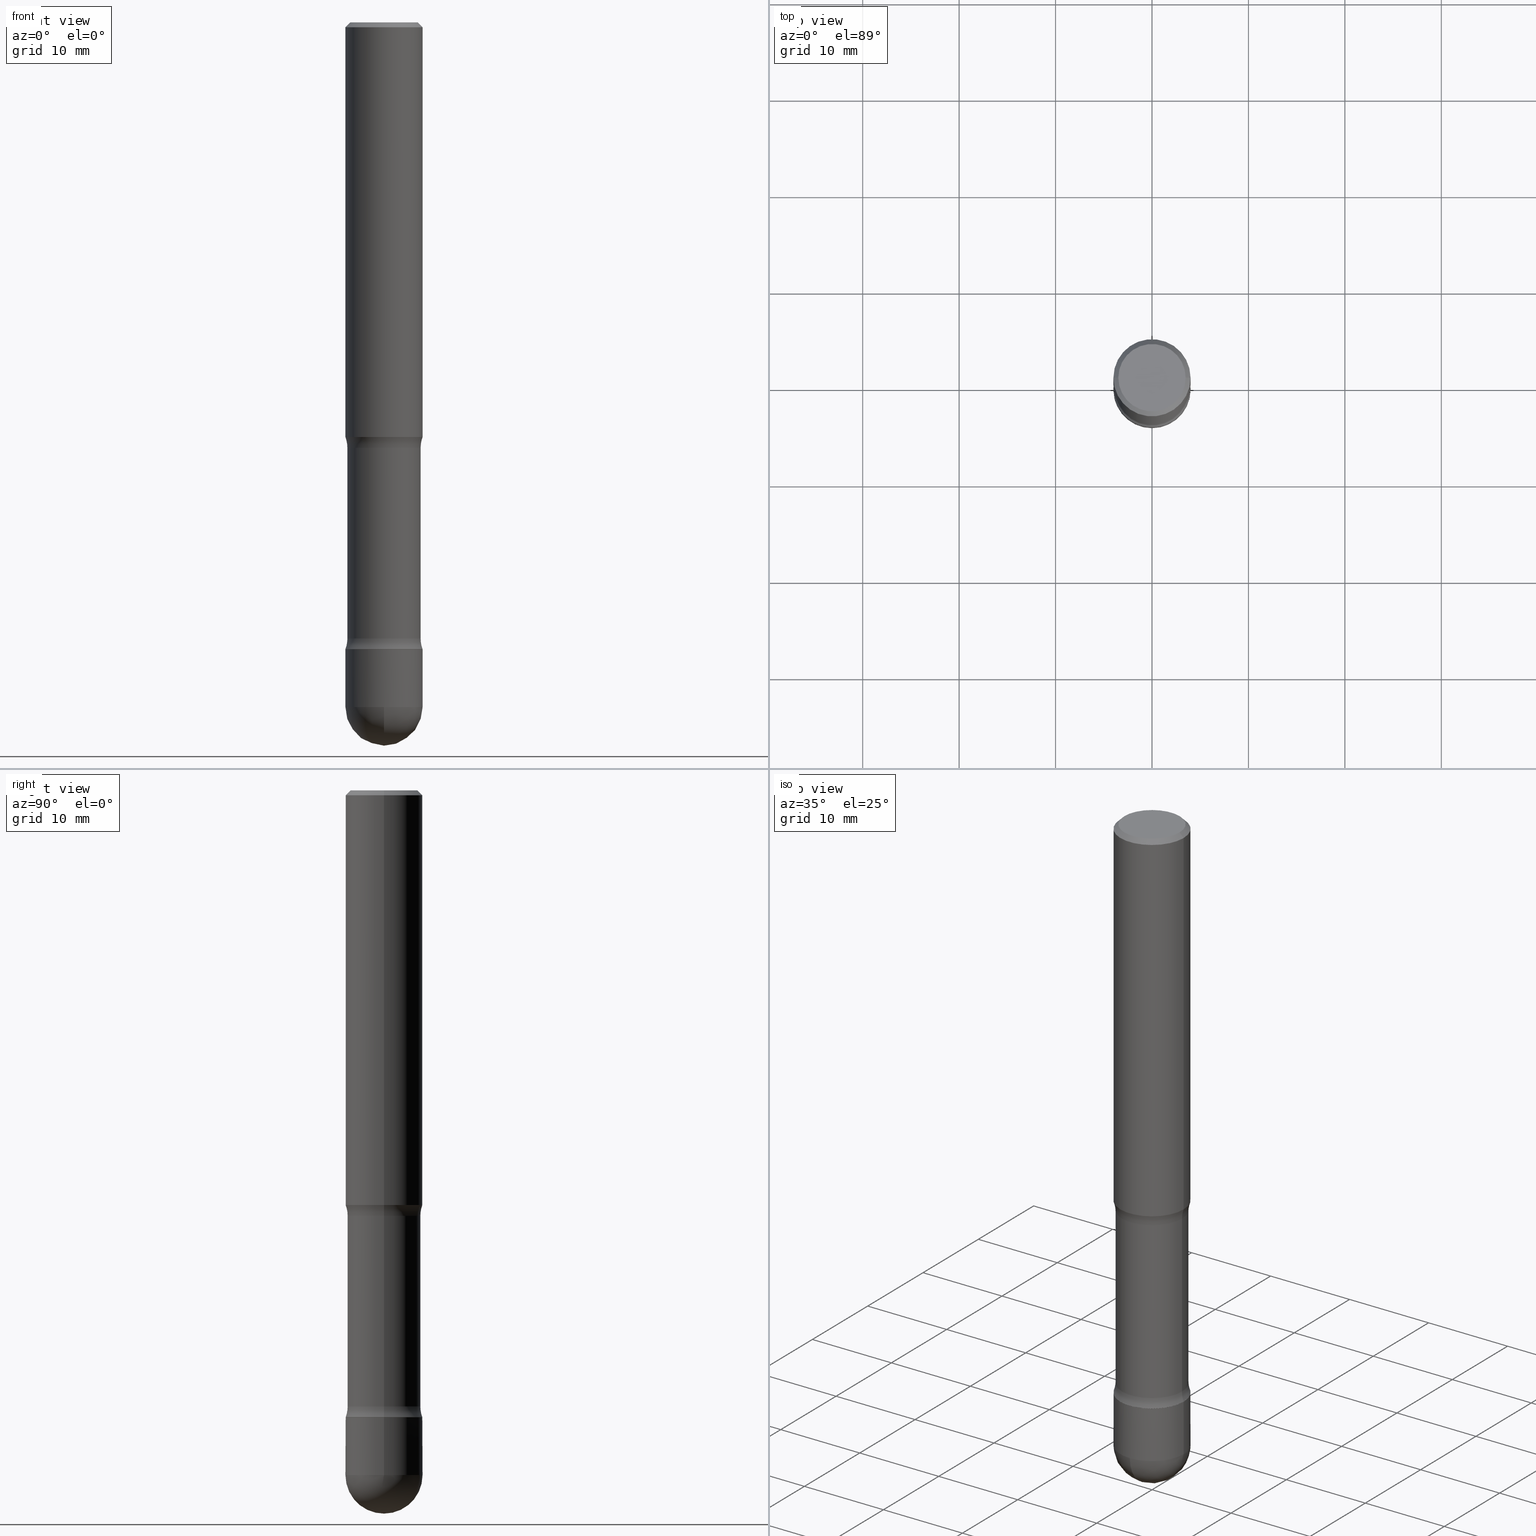
[diagram: canonical four-view strip — front | top / right | iso, engineering-drawing reading convention]
A machine part, canonical four-view strip (front | top / right | iso — engineering-drawing reading convention). The complete STEP part file that produces these views, byte-faithful:
ISO-10303-21;
HEADER;
FILE_DESCRIPTION (( 'STEP AP203' ),
    '1' );
FILE_NAME ('45207.STEP',
    '2024-02-29T19:26:57',
    ( '' ),
    ( '' ),
    'SwSTEP 2.0',
    'SolidWorks 2023',
    '' );
FILE_SCHEMA (( 'CONFIG_CONTROL_DESIGN' ));
ENDSEC;

DATA;
#1 = DIRECTION ( 'NONE',  ( 6.860497997771531562E-15, 1.000000000000000000, -3.491481338843145583E-15 ) ) ;
#2 = AXIS2_PLACEMENT_3D ( 'NONE', #468, #423, #353 ) ;
#3 = AXIS2_PLACEMENT_3D ( 'NONE', #98, #523, #449 ) ;
#4 = ADVANCED_FACE ( 'NONE', ( #20 ), #461, .T. ) ;
#5 = VERTEX_POINT ( 'NONE', #70 ) ;
#6 = LINE ( 'NONE', #260, #443 ) ;
#7 = CARTESIAN_POINT ( 'NONE',  ( -0.2744999999999865326, -6.864601460299616564E-15, -2.515100000000002556 ) ) ;
#8 = CARTESIAN_POINT ( 'NONE',  ( 0.1574999999999995015, -1.003486651596907730E-14, -2.559099999999999486 ) ) ;
#9 = DIRECTION ( 'NONE',  ( 2.445468806185136597E-29, -3.491481338843145583E-15, -1.000000000000000000 ) ) ;
#10 = CARTESIAN_POINT ( 'NONE',  ( 6.258199221908381703E-29, -8.935049894233492186E-15, -2.559099999999999486 ) ) ;
#11 = DIRECTION ( 'NONE',  ( 1.000000000000000000, -7.105427357601001070E-15, 4.926315508542082329E-29 ) ) ;
#12 = CARTESIAN_POINT ( 'NONE',  ( 0.2744999999999865326, -1.066463141571259585E-14, -2.515100000000002556 ) ) ;
#13 = AXIS2_PLACEMENT_3D ( 'NONE', #309, #273, #400 ) ;
#14 = ORIENTED_EDGE ( 'NONE', *, *, #39, .T. ) ;
#15 = DIRECTION ( 'NONE',  ( 2.445468806185136597E-29, -3.491481338843145583E-15, -1.000000000000000000 ) ) ;
#16 = DIRECTION ( 'NONE',  ( -2.445468806185136597E-29, 3.491481338843145583E-15, 1.000000000000000000 ) ) ;
#17 = LINE ( 'NONE', #409, #326 ) ;
#18 = VERTEX_POINT ( 'NONE', #31 ) ;
#19 = DIRECTION ( 'NONE',  ( 2.438088387897960049E-29, -3.491481338843145188E-15, -1.000000000000000000 ) ) ;
#20 = FACE_OUTER_BOUND ( 'NONE', #94, .T. ) ;
#21 = DATE_AND_TIME ( #335, #93 ) ;
#22 = AXIS2_PLACEMENT_3D ( 'NONE', #12, #359, #87 ) ;
#23 = CIRCLE ( 'NONE', #92, 0.1569999999999995011 ) ;
#24 = EDGE_CURVE ( 'NONE', #425, #248, #119, .T. ) ;
#25 = DATE_AND_TIME ( #242, #199 ) ;
#26 = PERSON_AND_ORGANIZATION_ROLE ( 'classification_officer' ) ;
#27 = TOROIDAL_SURFACE ( 'NONE', #363, 0.2744999999999865326, 0.1249999999999865385 ) ;
#28 = AXIS2_PLACEMENT_3D ( 'NONE', #7, #56, #236 ) ;
#29 = ORIENTED_EDGE ( 'NONE', *, *, #140, .T. ) ;
#30 = EDGE_CURVE ( 'NONE', #265, #278, #432, .T. ) ;
#31 = CARTESIAN_POINT ( 'NONE',  ( 0.1575000000000000011, -4.070982201368173666E-15, -1.693000000000002503 ) ) ;
#32 = DIRECTION ( 'NONE',  ( -6.982962677686266711E-15, -1.000000000000000000, 3.491481338843145583E-15 ) ) ;
#33 = DIRECTION ( 'NONE',  ( -1.000000000000000000, 6.982962677686265922E-15, -4.876176775795935793E-29 ) ) ;
#34 = CONICAL_SURFACE ( 'NONE', #189, 0.1569999999999995011, 0.7853981633976829801 ) ;
#35 = CARTESIAN_POINT ( 'NONE',  ( -0.1495000000000001328, -5.020750165256446212E-15, -1.736999999999999877 ) ) ;
#36 = CC_DESIGN_PERSON_AND_ORGANIZATION_ASSIGNMENT ( #99, #85, ( #75 ) ) ;
#37 = DIRECTION ( 'NONE',  ( -1.000000000000000000, 6.982962677686269077E-15, 0.000000000000000000 ) ) ;
#38 = CARTESIAN_POINT ( 'NONE',  ( 0.1574999999999995015, -1.099816621735583536E-15, 7.679978421878574211E-30 ) ) ;
#39 = EDGE_CURVE ( 'NONE', #237, #427, #554, .T. ) ;
#40 = DIRECTION ( 'NONE',  ( -1.000000000000000000, 6.982962677686266711E-15, 0.000000000000000000 ) ) ;
#41 = LINE ( 'NONE', #47, #533 ) ;
#42 = AXIS2_PLACEMENT_3D ( 'NONE', #445, #138, #272 ) ;
#43 = DIRECTION ( 'NONE',  ( -1.000000000000000000, 6.982962677686265922E-15, -4.883557194083112340E-29 ) ) ;
#44 = APPLICATION_PROTOCOL_DEFINITION ( 'international standard', 'config_control_design', 1994, #60 ) ;
#45 = ORIENTED_EDGE ( 'NONE', *, *, #24, .F. ) ;
#46 = CARTESIAN_POINT ( 'NONE',  ( 4.140178688871442186E-29, -5.911077906661454053E-15, -1.693000000000002503 ) ) ;
#47 = CARTESIAN_POINT ( 'NONE',  ( -0.1574999999999997513, 1.029986994958723196E-15, -0.01999999999999978531 ) ) ;
#48 = DIRECTION ( 'NONE',  ( 1.000000000000000000, -6.982962677686265922E-15, 4.876176775795935793E-29 ) ) ;
#49 = CC_DESIGN_PERSON_AND_ORGANIZATION_ASSIGNMENT ( #416, #26, ( #421 ) ) ;
#50 = ORIENTED_EDGE ( 'NONE', *, *, #463, .T. ) ;
#51 = FACE_OUTER_BOUND ( 'NONE', #57, .T. ) ;
#52 = CARTESIAN_POINT ( 'NONE',  ( 6.150598594436243200E-29, -8.781424715324403028E-15, -2.515100000000002556 ) ) ;
#53 = SPHERICAL_SURFACE ( 'NONE', #380, 0.1574999999999998623 ) ;
#54 = AXIS2_PLACEMENT_3D ( 'NONE', #566, #164, #487 ) ;
#55 = ORIENTED_EDGE ( 'NONE', *, *, #394, .T. ) ;
#56 = DIRECTION ( 'NONE',  ( -6.982962677686266711E-15, -1.000000000000000000, 3.491481338843145583E-15 ) ) ;
#57 = EDGE_LOOP ( 'NONE', ( #444, #560 ) ) ;
#58 = DIRECTION ( 'NONE',  ( 1.000000000000000000, -6.982962677686266711E-15, 4.876176775795935793E-29 ) ) ;
#59 = DATE_AND_TIME ( #112, #147 ) ;
#60 = APPLICATION_CONTEXT ( 'configuration controlled 3d designs of mechanical parts and assemblies' ) ;
#61 = AXIS2_PLACEMENT_3D ( 'NONE', #175, #9, #37 ) ;
#62 = DATE_TIME_ROLE ( 'creation_date' ) ;
#63 = AXIS2_PLACEMENT_3D ( 'NONE', #357, #15, #229 ) ;
#64 = ADVANCED_FACE ( 'NONE', ( #426 ), #546, .T. ) ;
#65 = APPROVAL_ROLE ( '' ) ;
#66 = CARTESIAN_POINT ( 'NONE',  ( 4.890937612370220610E-31, -6.982962677686216421E-17, -0.01999999999999978531 ) ) ;
#67 = ORIENTED_EDGE ( 'NONE', *, *, #254, .F. ) ;
#68 = EDGE_CURVE ( 'NONE', #88, #462, #197, .T. ) ;
#69 = TOROIDAL_SURFACE ( 'NONE', #63, 0.2744999999999884754, 0.1249999999999883149 ) ;
#70 = CARTESIAN_POINT ( 'NONE',  ( 0.1495000000000001328, -7.040976938773929541E-15, -1.736999999999999877 ) ) ;
#71 = PRODUCT_DEFINITION_FORMATION_WITH_SPECIFIED_SOURCE ( 'ANY', '', #75, .NOT_KNOWN. ) ;
#72 = DIRECTION ( 'NONE',  ( 2.445468806185136597E-29, -3.491481338843145583E-15, -1.000000000000000000 ) ) ;
#73 = ADVANCED_FACE ( 'NONE', ( #141 ), #34, .T. ) ;
#74 = LINE ( 'NONE', #78, #388 ) ;
#75 = PRODUCT ( '45207', '45207', '', ( #446 ) ) ;
#76 = ORIENTED_EDGE ( 'NONE', *, *, #394, .F. ) ;
#77 = CARTESIAN_POINT ( 'NONE',  ( 4.247779316343581811E-29, -6.064703085570544000E-15, -1.736999999999999877 ) ) ;
#78 = CARTESIAN_POINT ( 'NONE',  ( -0.1569999999999995011, -7.819497799090139426E-15, -2.559099999999999486 ) ) ;
#79 = CIRCLE ( 'NONE', #291, 0.1574999999999998623 ) ;
#80 = VERTEX_POINT ( 'NONE', #550 ) ;
#81 = DIRECTION ( 'NONE',  ( 2.445468806185136597E-29, -3.491481338843145583E-15, -1.000000000000000000 ) ) ;
#82 = CARTESIAN_POINT ( 'NONE',  ( 0.1574999999999995015, -1.044721046208645143E-14, -2.795299999999999674 ) ) ;
#83 = ADVANCED_FACE ( 'NONE', ( #245 ), #511, .F. ) ;
#84 = CARTESIAN_POINT ( 'NONE',  ( 1.119104808822223473E-15, 0.1574999999999899258, -2.795300000000000118 ) ) ;
#85 = PERSON_AND_ORGANIZATION_ROLE ( 'design_owner' ) ;
#86 = FACE_OUTER_BOUND ( 'NONE', #366, .T. ) ;
#87 = DIRECTION ( 'NONE',  ( -1.000000000000000000, 6.860497997771539451E-15, 0.000000000000000000 ) ) ;
#88 = VERTEX_POINT ( 'NONE', #331 ) ;
#89 = CARTESIAN_POINT ( 'NONE',  ( 6.258199221908381703E-29, -8.935049894233492186E-15, -2.559099999999999486 ) ) ;
#90 =( LENGTH_UNIT ( ) NAMED_UNIT ( * ) SI_UNIT ( $, .METRE. ) );
#91 = ADVANCED_FACE ( 'NONE', ( #294 ), #262, .T. ) ;
#92 = AXIS2_PLACEMENT_3D ( 'NONE', #389, #343, #342 ) ;
#93 = LOCAL_TIME ( 14, 26, 57.00000000000000000, #450 ) ;
#94 = EDGE_LOOP ( 'NONE', ( #289, #448, #186, #480 ) ) ;
#95 = CYLINDRICAL_SURFACE ( 'NONE', #54, 0.1494999999999999107 ) ;
#96 = CYLINDRICAL_SURFACE ( 'NONE', #206, 0.1494999999999999107 ) ;
#97 = VERTEX_POINT ( 'NONE', #475 ) ;
#98 = CARTESIAN_POINT ( 'NONE',  ( 0.000000000000000000, 0.000000000000000000, 0.000000000000000000 ) ) ;
#99 = PERSON_AND_ORGANIZATION ( #211, #233 ) ;
#100 = CARTESIAN_POINT ( 'NONE',  ( 6.258199221908381703E-29, -8.935049894233492186E-15, -2.559099999999999486 ) ) ;
#101 = ORIENTED_EDGE ( 'NONE', *, *, #264, .F. ) ;
#102 = DIRECTION ( 'NONE',  ( -1.000000000000000000, 6.982962677686265922E-15, -4.876176775795935793E-29 ) ) ;
#103 = CIRCLE ( 'NONE', #313, 0.1573638227056415317 ) ;
#104 = VERTEX_POINT ( 'NONE', #205 ) ;
#105 = CIRCLE ( 'NONE', #182, 0.1495000000000001328 ) ;
#106 = ORIENTED_EDGE ( 'NONE', *, *, #250, .F. ) ;
#107 = EDGE_CURVE ( 'NONE', #5, #18, #561, .T. ) ;
#108 = ORIENTED_EDGE ( 'NONE', *, *, #110, .F. ) ;
#109 = VECTOR ( 'NONE', #125, 39.37007874015748143 ) ;
#110 = EDGE_CURVE ( 'NONE', #395, #104, #74, .T. ) ;
#111 = CIRCLE ( 'NONE', #334, 0.1574999999999995015 ) ;
#112 = CALENDAR_DATE ( 2024, 29, 2 ) ;
#113 = DIRECTION ( 'NONE',  ( -2.445468806185136597E-29, 3.491481338843145583E-15, 1.000000000000000000 ) ) ;
#114 = EDGE_CURVE ( 'NONE', #427, #316, #431, .T. ) ;
#115 = ORIENTED_EDGE ( 'NONE', *, *, #551, .T. ) ;
#116 = VERTEX_POINT ( 'NONE', #258 ) ;
#117 = CLOSED_SHELL ( 'NONE', ( #91, #286, #406, #64, #337 ) ) ;
#118 = ORIENTED_EDGE ( 'NONE', *, *, #494, .T. ) ;
#119 = CIRCLE ( 'NONE', #167, 0.1494999999999996887 ) ;
#120 = AXIS2_PLACEMENT_3D ( 'NONE', #100, #19, #102 ) ;
#121 = DIRECTION ( 'NONE',  ( -1.000000000000000000, 6.982962677686266711E-15, 0.000000000000000000 ) ) ;
#122 = ORIENTED_EDGE ( 'NONE', *, *, #386, .T. ) ;
#123 = ADVANCED_FACE ( 'NONE', ( #349 ), #27, .F. ) ;
#124 = DIRECTION ( 'NONE',  ( 2.438088387897960049E-29, -3.491481338843145188E-15, -1.000000000000000000 ) ) ;
#125 = DIRECTION ( 'NONE',  ( 2.445468806185136877E-29, -3.491481338843145188E-15, -1.000000000000000000 ) ) ;
#126 = EDGE_LOOP ( 'NONE', ( #402, #456, #459, #139 ) ) ;
#127 = CARTESIAN_POINT ( 'NONE',  ( 6.822350084874735636E-29, -9.779025973554814517E-15, -2.795299999999999674 ) ) ;
#128 = FACE_OUTER_BOUND ( 'NONE', #336, .T. ) ;
#129 = CARTESIAN_POINT ( 'NONE',  ( -0.1374999999999997335, 9.601573681818597005E-16, -6.704743066719399103E-30 ) ) ;
#130 = ORIENTED_EDGE ( 'NONE', *, *, #39, .F. ) ;
#131 = CARTESIAN_POINT ( 'NONE',  ( 6.822350084874735636E-29, -9.779025973554814517E-15, -2.795299999999999674 ) ) ;
#132 =( NAMED_UNIT ( * ) SI_UNIT ( $, .STERADIAN. ) SOLID_ANGLE_UNIT ( ) );
#133 = CC_DESIGN_PERSON_AND_ORGANIZATION_ASSIGNMENT ( #531, #489, ( #516 ) ) ;
#134 = VERTEX_POINT ( 'NONE', #129 ) ;
#135 = DIRECTION ( 'NONE',  ( 1.000000000000000000, -6.982962677686271444E-15, 0.000000000000000000 ) ) ;
#136 = VECTOR ( 'NONE', #224, 39.37007874015748143 ) ;
#137 = ORIENTED_EDGE ( 'NONE', *, *, #114, .T. ) ;
#138 = DIRECTION ( 'NONE',  ( -2.445468806185136597E-29, 3.491481338843145583E-15, 1.000000000000000000 ) ) ;
#139 = ORIENTED_EDGE ( 'NONE', *, *, #538, .F. ) ;
#140 = EDGE_CURVE ( 'NONE', #301, #271, #17, .T. ) ;
#141 = FACE_OUTER_BOUND ( 'NONE', #162, .T. ) ;
#142 = ORIENTED_EDGE ( 'NONE', *, *, #194, .T. ) ;
#143 = EDGE_CURVE ( 'NONE', #97, #425, #297, .T. ) ;
#144 = CIRCLE ( 'NONE', #333, 0.1574999999999997513 ) ;
#145 = CARTESIAN_POINT ( 'NONE',  ( 4.890937612370220610E-31, -6.982962677686216421E-17, -0.01999999999999978531 ) ) ;
#146 = AXIS2_PLACEMENT_3D ( 'NONE', #539, #483, #371 ) ;
#147 = LOCAL_TIME ( 14, 26, 57.00000000000000000, #506 ) ;
#148 = PERSON_AND_ORGANIZATION_ROLE ( 'creator' ) ;
#149 = EDGE_CURVE ( 'NONE', #5, #425, #451, .T. ) ;
#150 = PERSON_AND_ORGANIZATION ( #211, #233 ) ;
#151 = CIRCLE ( 'NONE', #379, 0.1574999999999998623 ) ;
#152 = AXIS2_PLACEMENT_3D ( 'NONE', #478, #210, #249 ) ;
#153 = VERTEX_POINT ( 'NONE', #84 ) ;
#154 = UNCERTAINTY_MEASURE_WITH_UNIT (LENGTH_MEASURE( 1.000000000000000082E-05 ), #318, 'distance_accuracy_value', 'NONE');
#155 = DIRECTION ( 'NONE',  ( 2.445468806185136597E-29, -3.491481338843145583E-15, -1.000000000000000000 ) ) ;
#156 = EDGE_CURVE ( 'NONE', #462, #88, #144, .T. ) ;
#157 = DIRECTION ( 'NONE',  ( 2.445468806185136597E-29, -3.491481338843145583E-15, -1.000000000000000000 ) ) ;
#158 = CIRCLE ( 'NONE', #28, 0.1249999999999865385 ) ;
#159 = CARTESIAN_POINT ( 'NONE',  ( 0.1574999999999997513, -1.150358061425876711E-15, -0.01999999999999978531 ) ) ;
#160 = EDGE_LOOP ( 'NONE', ( #202, #485, #438, #184 ) ) ;
#161 = CARTESIAN_POINT ( 'NONE',  ( 0.1569999999999995011, -1.003137503463023272E-14, -2.559099999999999486 ) ) ;
#162 = EDGE_LOOP ( 'NONE', ( #108, #417, #338, #55 ) ) ;
#163 = EDGE_LOOP ( 'NONE', ( #106, #543, #509, #540 ) ) ;
#164 = DIRECTION ( 'NONE',  ( 2.445468806185136597E-29, -3.491481338843145583E-15, -1.000000000000000000 ) ) ;
#165 = ORIENTED_EDGE ( 'NONE', *, *, #222, .T. ) ;
#166 = CARTESIAN_POINT ( 'NONE',  ( -0.1574999999999995015, -8.228289031528713448E-15, -2.795299999999999674 ) ) ;
#167 = AXIS2_PLACEMENT_3D ( 'NONE', #383, #191, #429 ) ;
#168 = DIRECTION ( 'NONE',  ( -0.7071067811867134401, 7.493145998870953694E-15, 0.7071067811863815944 ) ) ;
#169 = AXIS2_PLACEMENT_3D ( 'NONE', #52, #261, #362 ) ;
#170 = CARTESIAN_POINT ( 'NONE',  ( 0.1574999999999998901, -1.001557832888250797E-14, -2.559099999999999486 ) ) ;
#171 = DIRECTION ( 'NONE',  ( 2.445468806185136597E-29, -3.491481338843145583E-15, -1.000000000000000000 ) ) ;
#172 = DIRECTION ( 'NONE',  ( -2.445468806185136597E-29, 3.491481338843145583E-15, 1.000000000000000000 ) ) ;
#173 = APPROVAL ( #195, 'UNSPECIFIED' ) ;
#174 = ORIENTED_EDGE ( 'NONE', *, *, #149, .T. ) ;
#175 = CARTESIAN_POINT ( 'NONE',  ( 6.258199221908381703E-29, -8.935049894233492186E-15, -2.559099999999999486 ) ) ;
#176 = DIRECTION ( 'NONE',  ( 2.445468806185136597E-29, -3.491481338843145583E-15, -1.000000000000000000 ) ) ;
#177 = EDGE_CURVE ( 'NONE', #265, #5, #216, .T. ) ;
#178 = ORIENTED_EDGE ( 'NONE', *, *, #24, .T. ) ;
#179 = EDGE_LOOP ( 'NONE', ( #501, #174, #259, #324 ) ) ;
#180 = CARTESIAN_POINT ( 'NONE',  ( -1.099816621735516286E-15, -0.1575000000000094658, -2.795299999999998786 ) ) ;
#181 = CARTESIAN_POINT ( 'NONE',  ( 6.835818953929311707E-29, -9.759737786468243605E-15, -2.795299999999999674 ) ) ;
#182 = AXIS2_PLACEMENT_3D ( 'NONE', #77, #171, #527 ) ;
#183 = EDGE_LOOP ( 'NONE', ( #319, #370, #281, #130 ) ) ;
#184 = ORIENTED_EDGE ( 'NONE', *, *, #368, .T. ) ;
#185 = APPROVAL_STATUS ( 'not_yet_approved' ) ;
#186 = ORIENTED_EDGE ( 'NONE', *, *, #368, .F. ) ;
#187 = DATE_AND_TIME ( #244, #434 ) ;
#188 = DIRECTION ( 'NONE',  ( 2.445468806185136597E-29, -3.491481338843145583E-15, -1.000000000000000000 ) ) ;
#189 = AXIS2_PLACEMENT_3D ( 'NONE', #323, #238, #375 ) ;
#190 = CIRCLE ( 'NONE', #146, 0.1573638227056415317 ) ;
#191 = DIRECTION ( 'NONE',  ( 2.445468806185136597E-29, -3.491481338843145583E-15, -1.000000000000000000 ) ) ;
#192 = CIRCLE ( 'NONE', #522, 0.1575000000000000011 ) ;
#193 = EDGE_CURVE ( 'NONE', #104, #97, #103, .T. ) ;
#194 = EDGE_CURVE ( 'NONE', #395, #116, #547, .T. ) ;
#195 = APPROVAL_STATUS ( 'not_yet_approved' ) ;
#196 = ADVANCED_FACE ( 'NONE', ( #398 ), #95, .T. ) ;
#197 = CIRCLE ( 'NONE', #240, 0.1574999999999997513 ) ;
#198 = AXIS2_PLACEMENT_3D ( 'NONE', #46, #81, #403 ) ;
#199 = LOCAL_TIME ( 14, 26, 57.00000000000000000, #378 ) ;
#200 = DIRECTION ( 'NONE',  ( -1.000000000000000000, 6.982962677686266711E-15, 0.000000000000000000 ) ) ;
#201 = EDGE_CURVE ( 'NONE', #356, #237, #151, .T. ) ;
#202 = ORIENTED_EDGE ( 'NONE', *, *, #107, .F. ) ;
#203 = EDGE_LOOP ( 'NONE', ( #292, #29, #101, #385, #115 ) ) ;
#204 = LINE ( 'NONE', #161, #477 ) ;
#205 = CARTESIAN_POINT ( 'NONE',  ( -0.1573638227056415040, -7.834913913274563422E-15, -2.558736177294357539 ) ) ;
#206 = AXIS2_PLACEMENT_3D ( 'NONE', #10, #176, #352 ) ;
#207 = ADVANCED_FACE ( 'NONE', ( #308 ), #424, .T. ) ;
#208 = DESIGN_CONTEXT ( 'detailed design', #60, 'design' ) ;
#209 = CARTESIAN_POINT ( 'NONE',  ( 4.247779316343581811E-29, -6.064703085570544000E-15, -1.736999999999999877 ) ) ;
#210 = DIRECTION ( 'NONE',  ( 2.445468806185136597E-29, -3.491481338843145583E-15, -1.000000000000000000 ) ) ;
#211 = PERSON ( 'UNSPECIFIED', 'UNSPECIFIED', 'UNSPECIFIED', ('UNSPECIFIED'), ('UNSPECIFIED'), ('UNSPECIFIED') ) ;
#212 = DIRECTION ( 'NONE',  ( -1.000000000000000000, 6.982962677686266711E-15, 0.000000000000000000 ) ) ;
#213 = EDGE_CURVE ( 'NONE', #134, #80, #374, .T. ) ;
#214 = DIRECTION ( 'NONE',  ( -6.982962677686264344E-15, -1.000000000000000000, 0.000000000000000000 ) ) ;
#215 = DATE_AND_TIME ( #312, #514 ) ;
#216 = CIRCLE ( 'NONE', #345, 0.1495000000000001328 ) ;
#217 = CIRCLE ( 'NONE', #399, 0.1574999999999995015 ) ;
#218 = ORIENTED_EDGE ( 'NONE', *, *, #107, .T. ) ;
#219 = ORIENTED_EDGE ( 'NONE', *, *, #538, .T. ) ;
#220 = DIRECTION ( 'NONE',  ( 1.000000000000000000, -6.982962677686271444E-15, 0.000000000000000000 ) ) ;
#221 = PERSON_AND_ORGANIZATION ( #211, #233 ) ;
#222 = EDGE_CURVE ( 'NONE', #18, #278, #420, .T. ) ;
#223 = DIRECTION ( 'NONE',  ( 2.445468806185136877E-29, -3.491481338843145188E-15, -1.000000000000000000 ) ) ;
#224 = DIRECTION ( 'NONE',  ( 2.445468806185136877E-29, -3.491481338843145188E-15, -1.000000000000000000 ) ) ;
#225 = DIRECTION ( 'NONE',  ( 2.445468806185136597E-29, -3.491481338843145583E-15, -1.000000000000000000 ) ) ;
#226 = DIRECTION ( 'NONE',  ( 2.445468806185136597E-29, -3.491481338843145583E-15, -1.000000000000000000 ) ) ;
#227 = CC_DESIGN_DATE_AND_TIME_ASSIGNMENT ( #25, #502, ( #421 ) ) ;
#228 = ORIENTED_EDGE ( 'NONE', *, *, #156, .F. ) ;
#229 = DIRECTION ( 'NONE',  ( -1.000000000000000000, 6.982962677686265922E-15, -4.883557194083112901E-29 ) ) ;
#230 = DIRECTION ( 'NONE',  ( -2.445468806185136597E-29, 3.491481338843145583E-15, 1.000000000000000000 ) ) ;
#231 = CARTESIAN_POINT ( 'NONE',  ( 6.822350084874735636E-29, -9.779025973554814517E-15, -2.795299999999999674 ) ) ;
#232 = CIRCLE ( 'NONE', #486, 0.1374999999999997335 ) ;
#233 = ORGANIZATION ( 'UNSPECIFIED', 'UNSPECIFIED', '' ) ;
#234 = EDGE_LOOP ( 'NONE', ( #76, #415, #178, #497 ) ) ;
#235 = PERSON_AND_ORGANIZATION_ROLE ( 'design_supplier' ) ;
#236 = DIRECTION ( 'NONE',  ( 1.000000000000000000, -6.982962677686269077E-15, 0.000000000000000000 ) ) ;
#237 = VERTEX_POINT ( 'NONE', #180 ) ;
#238 = DIRECTION ( 'NONE',  ( -2.445468806185136597E-29, 3.491481338843145583E-15, 1.000000000000000000 ) ) ;
#239 = CC_DESIGN_PERSON_AND_ORGANIZATION_ASSIGNMENT ( #503, #235, ( #71 ) ) ;
#240 = AXIS2_PLACEMENT_3D ( 'NONE', #145, #157, #121 ) ;
#241 = AXIS2_PLACEMENT_3D ( 'NONE', #517, #124, #476 ) ;
#242 = CALENDAR_DATE ( 2024, 29, 2 ) ;
#243 = DIRECTION ( 'NONE',  ( -6.982962677686265133E-15, -1.000000000000000000, 3.469013325287956449E-15 ) ) ;
#244 = CALENDAR_DATE ( 2024, 29, 2 ) ;
#245 = FACE_OUTER_BOUND ( 'NONE', #474, .T. ) ;
#246 = AXIS2_PLACEMENT_3D ( 'NONE', #181, #16, #303 ) ;
#247 = CARTESIAN_POINT ( 'NONE',  ( 6.835818953929311707E-29, -9.759737786468243605E-15, -2.795299999999999674 ) ) ;
#248 = VERTEX_POINT ( 'NONE', #492 ) ;
#249 = DIRECTION ( 'NONE',  ( -1.000000000000000000, 6.982962677686265922E-15, 0.000000000000000000 ) ) ;
#250 = EDGE_CURVE ( 'NONE', #462, #18, #407, .T. ) ;
#251 = CARTESIAN_POINT ( 'NONE',  ( 6.258199221908381703E-29, -8.935049894233492186E-15, -2.559099999999999486 ) ) ;
#252 = ORIENTED_EDGE ( 'NONE', *, *, #149, .F. ) ;
#253 = CARTESIAN_POINT ( 'NONE',  ( 0.000000000000000000, 0.000000000000000000, 0.000000000000000000 ) ) ;
#254 = EDGE_CURVE ( 'NONE', #80, #462, #6, .T. ) ;
#255 = ORIENTED_EDGE ( 'NONE', *, *, #418, .T. ) ;
#256 = CARTESIAN_POINT ( 'NONE',  ( 6.257309504830753180E-29, -8.933779614046096634E-15, -2.558736177294357539 ) ) ;
#257 = PRODUCT_DEFINITION_SHAPE ( 'NONE', 'NONE',  #516 ) ;
#258 = CARTESIAN_POINT ( 'NONE',  ( 0.1569999999999995011, -1.003201017472393128E-14, -2.559099999999999486 ) ) ;
#259 = ORIENTED_EDGE ( 'NONE', *, *, #418, .F. ) ;
#260 = CARTESIAN_POINT ( 'NONE',  ( 0.1574999999999997513, -1.150358061425876711E-15, -0.01999999999999978531 ) ) ;
#261 = DIRECTION ( 'NONE',  ( 2.445468806185136597E-29, -3.491481338843145583E-15, -1.000000000000000000 ) ) ;
#262 = CYLINDRICAL_SURFACE ( 'NONE', #373, 0.1574999999999995015 ) ;
#263 = FACE_OUTER_BOUND ( 'NONE', #126, .T. ) ;
#264 = EDGE_CURVE ( 'NONE', #316, #271, #111, .T. ) ;
#265 = VERTEX_POINT ( 'NONE', #35 ) ;
#266 = DIRECTION ( 'NONE',  ( -1.000000000000000000, 6.982962677686265133E-15, 0.000000000000000000 ) ) ;
#267 = AXIS2_PLACEMENT_3D ( 'NONE', #495, #32, #512 ) ;
#268 = CONICAL_SURFACE ( 'NONE', #548, 0.1574999999999997513, 0.7853981633974541632 ) ;
#269 = CARTESIAN_POINT ( 'NONE',  ( 6.150598594436243200E-29, -8.781424715324403028E-15, -2.515100000000002556 ) ) ;
#270 = CC_DESIGN_APPROVAL ( #306, ( #421 ) ) ;
#271 = VERTEX_POINT ( 'NONE', #344 ) ;
#272 = DIRECTION ( 'NONE',  ( 1.000000000000000000, -6.982962677686262766E-15, 0.000000000000000000 ) ) ;
#273 = DIRECTION ( 'NONE',  ( 0.000000000000000000, 0.000000000000000000, 1.000000000000000000 ) ) ;
#274 = EDGE_LOOP ( 'NONE', ( #436, #470, #452, #381 ) ) ;
#275 = PLANE ( 'NONE',  #279 ) ;
#276 = APPROVAL_ROLE ( '' ) ;
#277 = CARTESIAN_POINT ( 'NONE',  ( -0.1569999999999995011, -7.817570101093448506E-15, -2.559099999999999486 ) ) ;
#278 = VERTEX_POINT ( 'NONE', #519 ) ;
#279 = AXIS2_PLACEMENT_3D ( 'NONE', #453, #412, #48 ) ;
#280 = ORIENTED_EDGE ( 'NONE', *, *, #355, .F. ) ;
#281 = ORIENTED_EDGE ( 'NONE', *, *, #551, .F. ) ;
#282 = ADVANCED_FACE ( 'NONE', ( #346 ), #437, .T. ) ;
#283 = AXIS2_PLACEMENT_3D ( 'NONE', #559, #328, #58 ) ;
#284 = AXIS2_PLACEMENT_3D ( 'NONE', #127, #302, #351 ) ;
#285 = LINE ( 'NONE', #473, #413 ) ;
#286 = ADVANCED_FACE ( 'NONE', ( #396 ), #439, .T. ) ;
#287 = ORIENTED_EDGE ( 'NONE', *, *, #528, .F. ) ;
#288 = FACE_OUTER_BOUND ( 'NONE', #510, .T. ) ;
#289 = ORIENTED_EDGE ( 'NONE', *, *, #68, .T. ) ;
#290 = AXIS2_PLACEMENT_3D ( 'NONE', #247, #113, #372 ) ;
#291 = AXIS2_PLACEMENT_3D ( 'NONE', #490, #11, #354 ) ;
#292 = ORIENTED_EDGE ( 'NONE', *, *, #422, .T. ) ;
#293 = CARTESIAN_POINT ( 'NONE',  ( 4.890937612370220610E-31, -6.982962677686216421E-17, -0.01999999999999978531 ) ) ;
#294 = FACE_OUTER_BOUND ( 'NONE', #203, .T. ) ;
#295 = MANIFOLD_SOLID_BREP ( 'Body-Move/Copy2[1]', #117 ) ;
#296 = PLANE ( 'NONE',  #241 ) ;
#297 = CIRCLE ( 'NONE', #22, 0.1249999999999865385 ) ;
#298 = CARTESIAN_POINT ( 'NONE',  ( 4.890937612370220610E-31, -6.982962677686216421E-17, -0.01999999999999978531 ) ) ;
#299 = CIRCLE ( 'NONE', #433, 0.1574999999999995015 ) ;
#300 = DIRECTION ( 'NONE',  ( -2.445468806185136597E-29, 3.491481338843145583E-15, 1.000000000000000000 ) ) ;
#301 = VERTEX_POINT ( 'NONE', #166 ) ;
#302 = DIRECTION ( 'NONE',  ( 1.000000000000000000, -6.982962677686265133E-15, 4.883557194083112901E-29 ) ) ;
#303 = DIRECTION ( 'NONE',  ( 1.000000000000000000, -6.982962677686271444E-15, 0.000000000000000000 ) ) ;
#304 = DIRECTION ( 'NONE',  ( 1.000000000000000000, -6.982962677686266711E-15, 4.876176775795935793E-29 ) ) ;
#305 = ADVANCED_FACE ( 'NONE', ( #526 ), #69, .F. ) ;
#306 = APPROVAL ( #185, 'UNSPECIFIED' ) ;
#307 = ORIENTED_EDGE ( 'NONE', *, *, #377, .F. ) ;
#308 = FACE_OUTER_BOUND ( 'NONE', #274, .T. ) ;
#309 = CARTESIAN_POINT ( 'NONE',  ( 0.000000000000000000, 0.000000000000000000, 0.000000000000000000 ) ) ;
#310 = ORIENTED_EDGE ( 'NONE', *, *, #466, .T. ) ;
#311 = DIRECTION ( 'NONE',  ( 2.445468806185136597E-29, -3.491481338843145583E-15, -1.000000000000000000 ) ) ;
#312 = CALENDAR_DATE ( 2024, 29, 2 ) ;
#313 = AXIS2_PLACEMENT_3D ( 'NONE', #256, #530, #481 ) ;
#314 = MANIFOLD_SOLID_BREP ( 'Body-Move/Copy2[2]', #532 ) ;
#315 = AXIS2_PLACEMENT_3D ( 'NONE', #541, #230, #348 ) ;
#316 = VERTEX_POINT ( 'NONE', #8 ) ;
#317 = CARTESIAN_POINT ( 'NONE',  ( 6.258199221908381703E-29, -8.935049894233492186E-15, -2.559099999999999486 ) ) ;
#318 =( CONVERSION_BASED_UNIT ( 'INCH', #320 ) LENGTH_UNIT ( ) NAMED_UNIT ( #525 ) );
#319 = ORIENTED_EDGE ( 'NONE', *, *, #201, .F. ) ;
#320 = LENGTH_MEASURE_WITH_UNIT ( LENGTH_MEASURE( 0.02539999999999999897 ), #90 );
#321 = DIRECTION ( 'NONE',  ( -1.000000000000000000, 6.982962677686265922E-15, -4.883557194083112901E-29 ) ) ;
#322 = CARTESIAN_POINT ( 'NONE',  ( 0.1494999999999999107, -9.960694344900336647E-15, -2.559099999999999486 ) ) ;
#323 = CARTESIAN_POINT ( 'NONE',  ( 6.258199221908381703E-29, -8.935049894233492186E-15, -2.559099999999999486 ) ) ;
#324 = ORIENTED_EDGE ( 'NONE', *, *, #410, .F. ) ;
#325 = SECURITY_CLASSIFICATION_LEVEL ( 'unclassified' ) ;
#326 = VECTOR ( 'NONE', #484, 39.37007874015748143 ) ;
#327 = VECTOR ( 'NONE', #223, 39.37007874015748143 ) ;
#328 = DIRECTION ( 'NONE',  ( -2.445468806185136597E-29, 3.491481338843145583E-15, 1.000000000000000000 ) ) ;
#329 = CC_DESIGN_DATE_AND_TIME_ASSIGNMENT ( #21, #62, ( #516 ) ) ;
#330 = APPROVAL_DATE_TIME ( #59, #306 ) ;
#331 = CARTESIAN_POINT ( 'NONE',  ( -0.1574999999999997513, 1.029986994958723196E-15, -0.01999999999999978531 ) ) ;
#332 = ADVANCED_FACE ( 'NONE', ( #51 ), #275, .T. ) ;
#333 = AXIS2_PLACEMENT_3D ( 'NONE', #298, #391, #40 ) ;
#334 = AXIS2_PLACEMENT_3D ( 'NONE', #317, #435, #220 ) ;
#335 = CALENDAR_DATE ( 2024, 29, 2 ) ;
#336 = EDGE_LOOP ( 'NONE', ( #557, #350, #122, #255 ) ) ;
#337 = ADVANCED_FACE ( 'NONE', ( #545 ), #414, .F. ) ;
#338 = ORIENTED_EDGE ( 'NONE', *, *, #441, .T. ) ;
#339 = AXIS2_PLACEMENT_3D ( 'NONE', #397, #1, #387 ) ;
#340 = AXIS2_PLACEMENT_3D ( 'NONE', #293, #155, #469 ) ;
#341 = ORIENTED_EDGE ( 'NONE', *, *, #355, .T. ) ;
#342 = DIRECTION ( 'NONE',  ( -1.000000000000000000, 6.982962677686269077E-15, 0.000000000000000000 ) ) ;
#343 = DIRECTION ( 'NONE',  ( 2.445468806185136597E-29, -3.491481338843145583E-15, -1.000000000000000000 ) ) ;
#344 = CARTESIAN_POINT ( 'NONE',  ( -0.1574999999999995015, -8.228289031528713448E-15, -2.559099999999999486 ) ) ;
#345 = AXIS2_PLACEMENT_3D ( 'NONE', #209, #361, #266 ) ;
#346 = FACE_OUTER_BOUND ( 'NONE', #163, .T. ) ;
#347 = CONICAL_SURFACE ( 'NONE', #340, 0.1574999999999997513, 0.7853981633974541632 ) ;
#348 = DIRECTION ( 'NONE',  ( 1.000000000000000000, -6.982962677686271444E-15, 0.000000000000000000 ) ) ;
#349 = FACE_OUTER_BOUND ( 'NONE', #234, .T. ) ;
#350 = ORIENTED_EDGE ( 'NONE', *, *, #193, .F. ) ;
#351 = DIRECTION ( 'NONE',  ( -6.982962677686265133E-15, -1.000000000000000000, 3.469013325287956449E-15 ) ) ;
#352 = DIRECTION ( 'NONE',  ( -1.000000000000000000, 6.982962677686269077E-15, 0.000000000000000000 ) ) ;
#353 = DIRECTION ( 'NONE',  ( -1.000000000000000000, 6.982962677686265922E-15, -4.883557194083112901E-29 ) ) ;
#354 = DIRECTION ( 'NONE',  ( 7.105427357601000281E-15, 1.000000000000000000, 0.000000000000000000 ) ) ;
#355 = EDGE_CURVE ( 'NONE', #271, #316, #217, .T. ) ;
#356 = VERTEX_POINT ( 'NONE', #365 ) ;
#357 = CARTESIAN_POINT ( 'NONE',  ( 4.247779316343581811E-29, -6.064703085570544000E-15, -1.736999999999999877 ) ) ;
#358 = COORDINATED_UNIVERSAL_TIME_OFFSET ( 5, 0, .BEHIND. ) ;
#359 = DIRECTION ( 'NONE',  ( 6.860497997771531562E-15, 1.000000000000000000, -3.491481338843145583E-15 ) ) ;
#360 = EDGE_LOOP ( 'NONE', ( #369, #390, #14, #137, #280 ) ) ;
#361 = DIRECTION ( 'NONE',  ( 2.445468806185136597E-29, -3.491481338843145583E-15, -1.000000000000000000 ) ) ;
#362 = DIRECTION ( 'NONE',  ( -1.000000000000000000, 6.982962677686265922E-15, -4.883557194083112901E-29 ) ) ;
#363 = AXIS2_PLACEMENT_3D ( 'NONE', #269, #226, #321 ) ;
#364 = AXIS2_PLACEMENT_3D ( 'NONE', #89, #311, #212 ) ;
#365 = CARTESIAN_POINT ( 'NONE',  ( 7.200776987321606637E-29, -1.033857837796589411E-14, -2.952799999999998981 ) ) ;
#366 = EDGE_LOOP ( 'NONE', ( #307, #558, #287, #529 ) ) ;
#367 =( NAMED_UNIT ( * ) PLANE_ANGLE_UNIT ( ) SI_UNIT ( $, .RADIAN. ) );
#368 = EDGE_CURVE ( 'NONE', #278, #18, #192, .T. ) ;
#369 = ORIENTED_EDGE ( 'NONE', *, *, #140, .F. ) ;
#370 = ORIENTED_EDGE ( 'NONE', *, *, #377, .T. ) ;
#371 = DIRECTION ( 'NONE',  ( -1.000000000000000000, 6.982962677686264344E-15, 0.000000000000000000 ) ) ;
#372 = DIRECTION ( 'NONE',  ( 1.000000000000000000, -6.982962677686271444E-15, 0.000000000000000000 ) ) ;
#373 = AXIS2_PLACEMENT_3D ( 'NONE', #447, #518, #304 ) ;
#374 = CIRCLE ( 'NONE', #3, 0.1374999999999997335 ) ;
#375 = DIRECTION ( 'NONE',  ( 1.000000000000000000, -6.982962677686262766E-15, 0.000000000000000000 ) ) ;
#376 = COORDINATED_UNIVERSAL_TIME_OFFSET ( 5, 0, .BEHIND. ) ;
#377 = EDGE_CURVE ( 'NONE', #356, #153, #79, .T. ) ;
#378 = COORDINATED_UNIVERSAL_TIME_OFFSET ( 5, 0, .BEHIND. ) ;
#379 = AXIS2_PLACEMENT_3D ( 'NONE', #131, #43, #214 ) ;
#380 = AXIS2_PLACEMENT_3D ( 'NONE', #231, #442, #243 ) ;
#381 = ORIENTED_EDGE ( 'NONE', *, *, #441, .F. ) ;
#382 = DIRECTION ( 'NONE',  ( 2.445468806185136877E-29, -3.491481338843145188E-15, -1.000000000000000000 ) ) ;
#383 = CARTESIAN_POINT ( 'NONE',  ( 6.150598594436236473E-29, -8.781424715324393562E-15, -2.515099999999999447 ) ) ;
#384 = APPROVAL ( #440, 'UNSPECIFIED' ) ;
#385 = ORIENTED_EDGE ( 'NONE', *, *, #114, .F. ) ;
#386 = EDGE_CURVE ( 'NONE', #104, #248, #158, .T. ) ;
#387 = DIRECTION ( 'NONE',  ( -1.000000000000000000, 6.860497997771534718E-15, 0.000000000000000000 ) ) ;
#388 = VECTOR ( 'NONE', #168, 39.37007874015748143 ) ;
#389 = CARTESIAN_POINT ( 'NONE',  ( 6.258199221908381703E-29, -8.935049894233492186E-15, -2.559099999999999486 ) ) ;
#390 = ORIENTED_EDGE ( 'NONE', *, *, #528, .T. ) ;
#391 = DIRECTION ( 'NONE',  ( 2.445468806185136597E-29, -3.491481338843145583E-15, -1.000000000000000000 ) ) ;
#392 = DIRECTION ( 'NONE',  ( 1.000000000000000000, -6.982962677686271444E-15, 0.000000000000000000 ) ) ;
#393 = DIRECTION ( 'NONE',  ( -2.445468806185136877E-29, 3.491481338843145188E-15, 1.000000000000000000 ) ) ;
#394 = EDGE_CURVE ( 'NONE', #97, #104, #190, .T. ) ;
#395 = VERTEX_POINT ( 'NONE', #277 ) ;
#396 = FACE_OUTER_BOUND ( 'NONE', #183, .T. ) ;
#397 = CARTESIAN_POINT ( 'NONE',  ( 0.2744999999999884754, -7.947909785958750232E-15, -1.736999999999999877 ) ) ;
#398 = FACE_OUTER_BOUND ( 'NONE', #564, .T. ) ;
#399 = AXIS2_PLACEMENT_3D ( 'NONE', #458, #172, #135 ) ;
#400 = DIRECTION ( 'NONE',  ( 1.000000000000000000, 0.000000000000000000, 0.000000000000000000 ) ) ;
#401 = APPROVAL_PERSON_ORGANIZATION ( #467, #173, #65 ) ;
#402 = ORIENTED_EDGE ( 'NONE', *, *, #213, .T. ) ;
#403 = DIRECTION ( 'NONE',  ( -1.000000000000000000, 6.982962677686268288E-15, 0.000000000000000000 ) ) ;
#404 = APPROVAL_DATE_TIME ( #215, #384 ) ;
#405 = DIRECTION ( 'NONE',  ( -1.000000000000000000, 6.982962677686268288E-15, 0.000000000000000000 ) ) ;
#406 = ADVANCED_FACE ( 'NONE', ( #86 ), #53, .T. ) ;
#407 = LINE ( 'NONE', #170, #327 ) ;
#408 = ADVANCED_FACE ( 'NONE', ( #263 ), #268, .T. ) ;
#409 = CARTESIAN_POINT ( 'NONE',  ( -0.1574999999999995015, 1.119104808822154251E-15, -7.747322767151453163E-30 ) ) ;
#410 = EDGE_CURVE ( 'NONE', #265, #248, #285, .T. ) ;
#411 = ORIENTED_EDGE ( 'NONE', *, *, #494, .F. ) ;
#412 = DIRECTION ( 'NONE',  ( -2.438088387897960049E-29, 3.491481338843145188E-15, 1.000000000000000000 ) ) ;
#413 = VECTOR ( 'NONE', #382, 39.37007874015748143 ) ;
#414 = PLANE ( 'NONE',  #120 ) ;
#415 = ORIENTED_EDGE ( 'NONE', *, *, #143, .T. ) ;
#416 = PERSON_AND_ORGANIZATION ( #211, #233 ) ;
#417 = ORIENTED_EDGE ( 'NONE', *, *, #463, .F. ) ;
#418 = EDGE_CURVE ( 'NONE', #248, #425, #471, .T. ) ;
#419 = ORIENTED_EDGE ( 'NONE', *, *, #410, .T. ) ;
#420 = CIRCLE ( 'NONE', #198, 0.1575000000000000011 ) ;
#421 = SECURITY_CLASSIFICATION ( '', '', #325 ) ;
#422 = EDGE_CURVE ( 'NONE', #153, #301, #299, .T. ) ;
#423 = DIRECTION ( 'NONE',  ( 2.445468806185136597E-29, -3.491481338843145583E-15, -1.000000000000000000 ) ) ;
#424 = CONICAL_SURFACE ( 'NONE', #42, 0.1569999999999995011, 0.7853981633976829801 ) ;
#425 = VERTEX_POINT ( 'NONE', #428 ) ;
#426 = FACE_OUTER_BOUND ( 'NONE', #360, .T. ) ;
#427 = VERTEX_POINT ( 'NONE', #82 ) ;
#428 = CARTESIAN_POINT ( 'NONE',  ( 0.1494999999999996887, -8.448708351114313636E-15, -2.515099999999999447 ) ) ;
#429 = DIRECTION ( 'NONE',  ( -1.000000000000000000, 6.982962677686265922E-15, 0.000000000000000000 ) ) ;
#430 = DIRECTION ( 'NONE',  ( 2.445468806185136597E-29, -3.491481338843145583E-15, -1.000000000000000000 ) ) ;
#431 = LINE ( 'NONE', #38, #504 ) ;
#432 = CIRCLE ( 'NONE', #267, 0.1249999999999883149 ) ;
#433 = AXIS2_PLACEMENT_3D ( 'NONE', #520, #300, #392 ) ;
#434 = LOCAL_TIME ( 14, 26, 57.00000000000000000, #376 ) ;
#435 = DIRECTION ( 'NONE',  ( -2.445468806185136597E-29, 3.491481338843145583E-15, 1.000000000000000000 ) ) ;
#436 = ORIENTED_EDGE ( 'NONE', *, *, #194, .F. ) ;
#437 = CYLINDRICAL_SURFACE ( 'NONE', #364, 0.1574999999999998901 ) ;
#438 = ORIENTED_EDGE ( 'NONE', *, *, #30, .T. ) ;
#439 = SPHERICAL_SURFACE ( 'NONE', #284, 0.1574999999999998623 ) ;
#440 = APPROVAL_STATUS ( 'not_yet_approved' ) ;
#441 = EDGE_CURVE ( 'NONE', #116, #97, #204, .T. ) ;
#442 = DIRECTION ( 'NONE',  ( 1.000000000000000000, -6.982962677686265133E-15, 4.883557194083112901E-29 ) ) ;
#443 = VECTOR ( 'NONE', #535, 39.37007874015748143 ) ;
#444 = ORIENTED_EDGE ( 'NONE', *, *, #213, .F. ) ;
#445 = CARTESIAN_POINT ( 'NONE',  ( 6.258199221908381703E-29, -8.935049894233492186E-15, -2.559099999999999486 ) ) ;
#446 = MECHANICAL_CONTEXT ( 'NONE', #513, 'mechanical' ) ;
#447 = CARTESIAN_POINT ( 'NONE',  ( 0.000000000000000000, 0.000000000000000000, 0.000000000000000000 ) ) ;
#448 = ORIENTED_EDGE ( 'NONE', *, *, #250, .T. ) ;
#449 = DIRECTION ( 'NONE',  ( -1.000000000000000000, 6.982962677686265922E-15, -4.876176775795935793E-29 ) ) ;
#450 = COORDINATED_UNIVERSAL_TIME_OFFSET ( 5, 0, .BEHIND. ) ;
#451 = LINE ( 'NONE', #322, #109 ) ;
#452 = ORIENTED_EDGE ( 'NONE', *, *, #193, .T. ) ;
#453 = CARTESIAN_POINT ( 'NONE',  ( 9.601573681818597005E-16, 0.1374999999999997335, -4.779444278458813133E-16 ) ) ;
#454 = ADVANCED_BREP_SHAPE_REPRESENTATION ( '45207', ( #295, #314, #13 ), #505 ) ;
#455 = ADVANCED_FACE ( 'NONE', ( #288 ), #347, .T. ) ;
#456 = ORIENTED_EDGE ( 'NONE', *, *, #254, .T. ) ;
#457 = APPLICATION_PROTOCOL_DEFINITION ( 'international standard', 'config_control_design', 1994, #513 ) ;
#458 = CARTESIAN_POINT ( 'NONE',  ( 6.258199221908381703E-29, -8.935049894233492186E-15, -2.559099999999999486 ) ) ;
#459 = ORIENTED_EDGE ( 'NONE', *, *, #68, .F. ) ;
#460 = SHAPE_DEFINITION_REPRESENTATION ( #257, #454 ) ;
#461 = CYLINDRICAL_SURFACE ( 'NONE', #521, 0.1574999999999998901 ) ;
#462 = VERTEX_POINT ( 'NONE', #159 ) ;
#463 = EDGE_CURVE ( 'NONE', #116, #395, #23, .T. ) ;
#464 = CIRCLE ( 'NONE', #246, 0.1574999999999995015 ) ;
#465 = APPROVAL_PERSON_ORGANIZATION ( #221, #384, #276 ) ;
#466 = EDGE_CURVE ( 'NONE', #80, #134, #232, .T. ) ;
#467 = PERSON_AND_ORGANIZATION ( #211, #233 ) ;
#468 = CARTESIAN_POINT ( 'NONE',  ( 4.247779316343581811E-29, -6.064703085570544000E-15, -1.736999999999999877 ) ) ;
#469 = DIRECTION ( 'NONE',  ( -1.000000000000000000, 6.982962677686266711E-15, 0.000000000000000000 ) ) ;
#470 = ORIENTED_EDGE ( 'NONE', *, *, #110, .T. ) ;
#471 = CIRCLE ( 'NONE', #152, 0.1494999999999996887 ) ;
#472 = ORIENTED_EDGE ( 'NONE', *, *, #264, .T. ) ;
#473 = CARTESIAN_POINT ( 'NONE',  ( -0.1494999999999999107, -7.891096973919396765E-15, -2.559099999999999486 ) ) ;
#474 = EDGE_LOOP ( 'NONE', ( #411, #218, #165, #491 ) ) ;
#475 = CARTESIAN_POINT ( 'NONE',  ( 0.1573638227056415040, -1.001337380463982243E-14, -2.558736177294357539 ) ) ;
#476 = DIRECTION ( 'NONE',  ( -1.000000000000000000, 6.982962677686265922E-15, -4.876176775795935793E-29 ) ) ;
#477 = VECTOR ( 'NONE', #507, 39.37007874015748143 ) ;
#478 = CARTESIAN_POINT ( 'NONE',  ( 6.150598594436236473E-29, -8.781424715324393562E-15, -2.515099999999999447 ) ) ;
#479 = ADVANCED_FACE ( 'NONE', ( #565 ), #296, .T. ) ;
#480 = ORIENTED_EDGE ( 'NONE', *, *, #508, .F. ) ;
#481 = DIRECTION ( 'NONE',  ( -1.000000000000000000, 6.982962677686264344E-15, 0.000000000000000000 ) ) ;
#482 = FACE_OUTER_BOUND ( 'NONE', #179, .T. ) ;
#483 = DIRECTION ( 'NONE',  ( 2.445468806185136597E-29, -3.491481338843145583E-15, -1.000000000000000000 ) ) ;
#484 = DIRECTION ( 'NONE',  ( -2.445468806185136877E-29, 3.491481338843145188E-15, 1.000000000000000000 ) ) ;
#485 = ORIENTED_EDGE ( 'NONE', *, *, #177, .F. ) ;
#486 = AXIS2_PLACEMENT_3D ( 'NONE', #253, #430, #33 ) ;
#487 = DIRECTION ( 'NONE',  ( -1.000000000000000000, 6.982962677686269077E-15, 0.000000000000000000 ) ) ;
#488 = CC_DESIGN_SECURITY_CLASSIFICATION ( #421, ( #71 ) ) ;
#489 = PERSON_AND_ORGANIZATION_ROLE ( 'creator' ) ;
#490 = CARTESIAN_POINT ( 'NONE',  ( 6.822350084874735636E-29, -9.779025973554814517E-15, -2.795299999999999674 ) ) ;
#491 = ORIENTED_EDGE ( 'NONE', *, *, #30, .F. ) ;
#492 = CARTESIAN_POINT ( 'NONE',  ( -0.1494999999999996887, -7.737471795010298140E-15, -2.515099999999999447 ) ) ;
#493 = LINE ( 'NONE', #524, #136 ) ;
#494 = EDGE_CURVE ( 'NONE', #5, #265, #105, .T. ) ;
#495 = CARTESIAN_POINT ( 'NONE',  ( -0.2744999999999884754, -4.147879830545744126E-15, -1.736999999999999877 ) ) ;
#496 = PRODUCT_RELATED_PRODUCT_CATEGORY ( 'detail', '', ( #75 ) ) ;
#497 = ORIENTED_EDGE ( 'NONE', *, *, #386, .F. ) ;
#498 = APPROVAL_DATE_TIME ( #187, #173 ) ;
#499 = EDGE_LOOP ( 'NONE', ( #472, #341 ) ) ;
#500 = ADVANCED_FACE ( 'NONE', ( #128 ), #562, .F. ) ;
#501 = ORIENTED_EDGE ( 'NONE', *, *, #177, .T. ) ;
#502 = DATE_TIME_ROLE ( 'classification_date' ) ;
#503 = PERSON_AND_ORGANIZATION ( #211, #233 ) ;
#504 = VECTOR ( 'NONE', #393, 39.37007874015748143 ) ;
#505 =( GEOMETRIC_REPRESENTATION_CONTEXT ( 3 ) GLOBAL_UNCERTAINTY_ASSIGNED_CONTEXT ( ( #154 ) ) GLOBAL_UNIT_ASSIGNED_CONTEXT ( ( #318, #367, #132 ) ) REPRESENTATION_CONTEXT ( 'NONE', 'WORKASPACE' ) );
#506 = COORDINATED_UNIVERSAL_TIME_OFFSET ( 5, 0, .BEHIND. ) ;
#507 = DIRECTION ( 'NONE',  ( 0.7071067811867134401, -2.468850131083994921E-15, 0.7071067811863815944 ) ) ;
#508 = EDGE_CURVE ( 'NONE', #88, #278, #493, .T. ) ;
#509 = ORIENTED_EDGE ( 'NONE', *, *, #508, .T. ) ;
#510 = EDGE_LOOP ( 'NONE', ( #67, #310, #219, #228 ) ) ;
#511 = TOROIDAL_SURFACE ( 'NONE', #2, 0.2744999999999884754, 0.1249999999999883149 ) ;
#512 = DIRECTION ( 'NONE',  ( 1.000000000000000000, -6.982962677686262766E-15, 0.000000000000000000 ) ) ;
#513 = APPLICATION_CONTEXT ( 'configuration controlled 3d designs of mechanical parts and assemblies' ) ;
#514 = LOCAL_TIME ( 14, 26, 57.00000000000000000, #358 ) ;
#515 = ADVANCED_FACE ( 'NONE', ( #482 ), #96, .T. ) ;
#516 = PRODUCT_DEFINITION ( 'UNKNOWN', '', #71, #208 ) ;
#517 = CARTESIAN_POINT ( 'NONE',  ( 1.096325140396803046E-15, 0.1569999999999905638, -2.559099999999999930 ) ) ;
#518 = DIRECTION ( 'NONE',  ( -2.445468806185136597E-29, 3.491481338843145583E-15, 1.000000000000000000 ) ) ;
#519 = CARTESIAN_POINT ( 'NONE',  ( -0.1575000000000000011, -4.811261284925866573E-15, -1.693000000000002503 ) ) ;
#520 = CARTESIAN_POINT ( 'NONE',  ( 6.835818953929311707E-29, -9.759737786468243605E-15, -2.795299999999999674 ) ) ;
#521 = AXIS2_PLACEMENT_3D ( 'NONE', #251, #72, #200 ) ;
#522 = AXIS2_PLACEMENT_3D ( 'NONE', #542, #225, #405 ) ;
#523 = DIRECTION ( 'NONE',  ( 2.445468806185136597E-29, -3.491481338843145583E-15, -1.000000000000000000 ) ) ;
#524 = CARTESIAN_POINT ( 'NONE',  ( -0.1574999999999998901, -7.835233272497907073E-15, -2.559099999999999486 ) ) ;
#525 = DIMENSIONAL_EXPONENTS ( 1.000000000000000000, 0.000000000000000000, 0.000000000000000000, 0.000000000000000000, 0.000000000000000000, 0.000000000000000000, 0.000000000000000000 ) ;
#526 = FACE_OUTER_BOUND ( 'NONE', #160, .T. ) ;
#527 = DIRECTION ( 'NONE',  ( -1.000000000000000000, 6.982962677686265133E-15, 0.000000000000000000 ) ) ;
#528 = EDGE_CURVE ( 'NONE', #301, #237, #464, .T. ) ;
#529 = ORIENTED_EDGE ( 'NONE', *, *, #422, .F. ) ;
#530 = DIRECTION ( 'NONE',  ( 2.445468806185136597E-29, -3.491481338843145583E-15, -1.000000000000000000 ) ) ;
#531 = PERSON_AND_ORGANIZATION ( #211, #233 ) ;
#532 = CLOSED_SHELL ( 'NONE', ( #207, #123, #515, #83, #4, #408, #455, #282, #305, #196, #500, #73, #479, #332 ) ) ;
#533 = VECTOR ( 'NONE', #537, 39.37007874015748143 ) ;
#534 = EDGE_LOOP ( 'NONE', ( #50, #142 ) ) ;
#535 = DIRECTION ( 'NONE',  ( 0.7071067811865516806, -7.319954787623270245E-15, -0.7071067811865433539 ) ) ;
#536 = CC_DESIGN_APPROVAL ( #173, ( #71 ) ) ;
#537 = DIRECTION ( 'NONE',  ( -0.7071067811865516806, 2.468850131082300448E-15, -0.7071067811865433539 ) ) ;
#538 = EDGE_CURVE ( 'NONE', #134, #88, #41, .T. ) ;
#539 = CARTESIAN_POINT ( 'NONE',  ( 6.257309504830753180E-29, -8.933779614046096634E-15, -2.558736177294357539 ) ) ;
#540 = ORIENTED_EDGE ( 'NONE', *, *, #222, .F. ) ;
#541 = CARTESIAN_POINT ( 'NONE',  ( 6.835818953929311707E-29, -9.759737786468243605E-15, -2.795299999999999674 ) ) ;
#542 = CARTESIAN_POINT ( 'NONE',  ( 4.140178688871442186E-29, -5.911077906661454053E-15, -1.693000000000002503 ) ) ;
#543 = ORIENTED_EDGE ( 'NONE', *, *, #156, .T. ) ;
#544 = APPROVAL_ROLE ( '' ) ;
#545 = FACE_OUTER_BOUND ( 'NONE', #499, .T. ) ;
#546 = CYLINDRICAL_SURFACE ( 'NONE', #283, 0.1574999999999995015 ) ;
#547 = CIRCLE ( 'NONE', #61, 0.1569999999999995011 ) ;
#548 = AXIS2_PLACEMENT_3D ( 'NONE', #66, #188, #552 ) ;
#549 = CC_DESIGN_APPROVAL ( #384, ( #516 ) ) ;
#550 = CARTESIAN_POINT ( 'NONE',  ( 0.1374999999999997335, -1.046838268059730322E-15, 7.017535886221982554E-30 ) ) ;
#551 = EDGE_CURVE ( 'NONE', #427, #153, #555, .T. ) ;
#552 = DIRECTION ( 'NONE',  ( -1.000000000000000000, 6.982962677686266711E-15, 0.000000000000000000 ) ) ;
#553 = PERSON_AND_ORGANIZATION ( #211, #233 ) ;
#554 = CIRCLE ( 'NONE', #290, 0.1574999999999995015 ) ;
#555 = CIRCLE ( 'NONE', #315, 0.1574999999999995015 ) ;
#556 = APPROVAL_PERSON_ORGANIZATION ( #553, #306, #544 ) ;
#557 = ORIENTED_EDGE ( 'NONE', *, *, #143, .F. ) ;
#558 = ORIENTED_EDGE ( 'NONE', *, *, #201, .T. ) ;
#559 = CARTESIAN_POINT ( 'NONE',  ( 0.000000000000000000, 0.000000000000000000, 0.000000000000000000 ) ) ;
#560 = ORIENTED_EDGE ( 'NONE', *, *, #466, .F. ) ;
#561 = CIRCLE ( 'NONE', #339, 0.1249999999999883149 ) ;
#562 = TOROIDAL_SURFACE ( 'NONE', #169, 0.2744999999999865326, 0.1249999999999865385 ) ;
#563 = CC_DESIGN_PERSON_AND_ORGANIZATION_ASSIGNMENT ( #150, #148, ( #71 ) ) ;
#564 = EDGE_LOOP ( 'NONE', ( #252, #118, #419, #45 ) ) ;
#565 = FACE_OUTER_BOUND ( 'NONE', #534, .T. ) ;
#566 = CARTESIAN_POINT ( 'NONE',  ( 6.258199221908381703E-29, -8.935049894233492186E-15, -2.559099999999999486 ) ) ;
ENDSEC;
END-ISO-10303-21;
